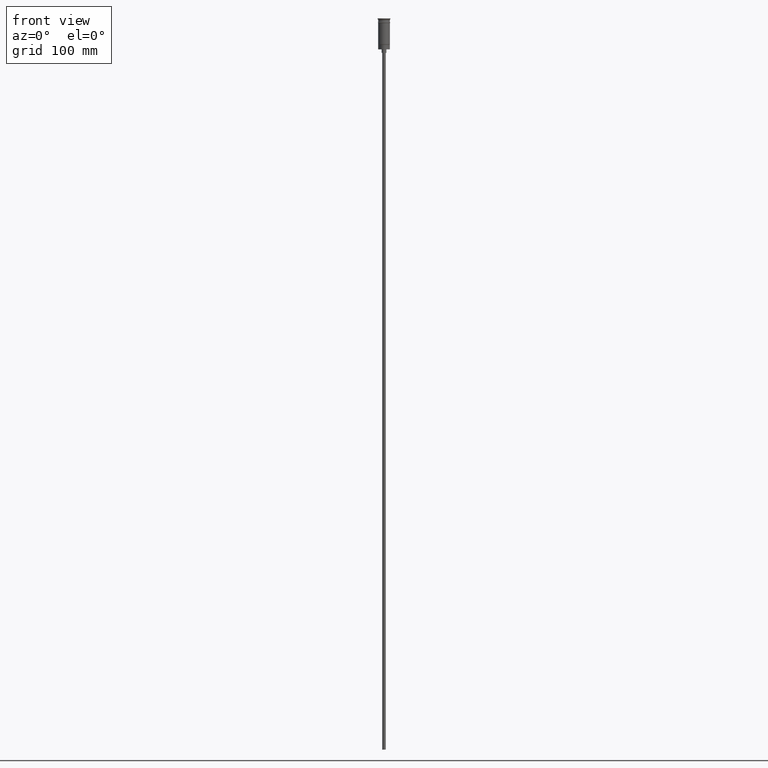
[diagram: clean part render]
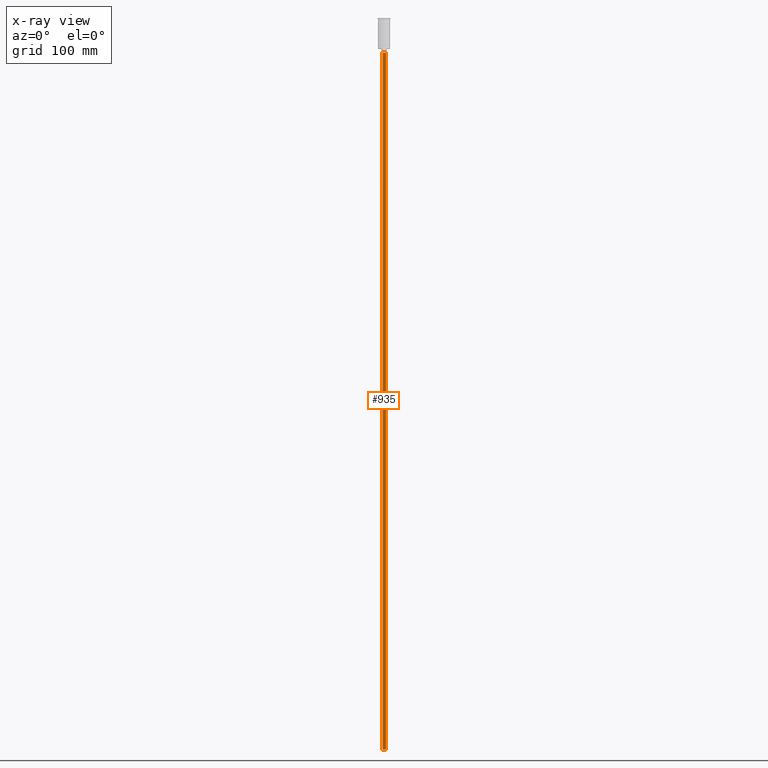
[diagram: x-ray — body ghosted, one internal face saturated and labeled with its STEP entity id]
A machine part, front view, then the same camera in x-ray: the body is ghosted and one INTERNAL B-rep face — a face not visible from any outside direction — is saturated and labeled: STEP entity #935.
In plain terms, the highlighted cylindrical surface (edge-blend (fillet) strip) has radius 1.5 mm, axis along (-0, -0, 1).
Its self-contained STEP definition (entity closure, byte-faithful):
#20 = CARTESIAN_POINT ( 'NONE',  ( 1.500000000000000222, 0.000000000000000000, -626.5000000000000000 ) ) ;
#50 = LINE ( 'NONE', #1543, #206 ) ;
#74 = FACE_OUTER_BOUND ( 'NONE', #1339, .T. ) ;
#206 = VECTOR ( 'NONE', #918, 1000.000000000000000 ) ;
#317 = CARTESIAN_POINT ( 'NONE',  ( -1.500000000000000222, 1.836970198721030181E-16, -29.50000000000000000 ) ) ;
#348 = DIRECTION ( 'NONE',  ( 0.000000000000000000, 0.000000000000000000, -1.000000000000000000 ) ) ;
#451 = ORIENTED_EDGE ( 'NONE', *, *, #1455, .T. ) ;
#522 = CARTESIAN_POINT ( 'NONE',  ( 1.500000000000000222, 0.000000000000000000, -29.50000000000000000 ) ) ;
#563 = AXIS2_PLACEMENT_3D ( 'NONE', #1538, #800, #1390 ) ;
#570 = VERTEX_POINT ( 'NONE', #20 ) ;
#597 = ORIENTED_EDGE ( 'NONE', *, *, #663, .T. ) ;
#617 = AXIS2_PLACEMENT_3D ( 'NONE', #1272, #1388, #1556 ) ;
#618 = CARTESIAN_POINT ( 'NONE',  ( -1.500000000000000222, 1.836970198721030181E-16, -626.5000000000000000 ) ) ;
#661 = CIRCLE ( 'NONE', #1225, 1.500000000000000222 ) ;
#663 = EDGE_CURVE ( 'NONE', #688, #1255, #661, .T. ) ;
#688 = VERTEX_POINT ( 'NONE', #317 ) ;
#800 = DIRECTION ( 'NONE',  ( -0.000000000000000000, -0.000000000000000000, 1.000000000000000000 ) ) ;
#825 = CARTESIAN_POINT ( 'NONE',  ( -1.500000000000000222, 1.836970198721030181E-16, -626.5000000000000000 ) ) ;
#829 = VECTOR ( 'NONE', #1094, 1000.000000000000000 ) ;
#855 = ORIENTED_EDGE ( 'NONE', *, *, #1361, .F. ) ;
#865 = LINE ( 'NONE', #825, #829 ) ;
#918 = DIRECTION ( 'NONE',  ( -0.000000000000000000, -0.000000000000000000, 1.000000000000000000 ) ) ;
#935 = ADVANCED_FACE ( 'NONE', ( #74 ), #1566, .T. ) ;
#1094 = DIRECTION ( 'NONE',  ( -0.000000000000000000, -0.000000000000000000, 1.000000000000000000 ) ) ;
#1128 = CIRCLE ( 'NONE', #617, 1.500000000000000222 ) ;
#1225 = AXIS2_PLACEMENT_3D ( 'NONE', #1452, #348, #1460 ) ;
#1255 = VERTEX_POINT ( 'NONE', #522 ) ;
#1272 = CARTESIAN_POINT ( 'NONE',  ( 0.000000000000000000, 0.000000000000000000, -626.5000000000000000 ) ) ;
#1322 = EDGE_CURVE ( 'NONE', #570, #1255, #50, .T. ) ;
#1339 = EDGE_LOOP ( 'NONE', ( #855, #451, #597, #1417 ) ) ;
#1361 = EDGE_CURVE ( 'NONE', #1544, #570, #1128, .T. ) ;
#1388 = DIRECTION ( 'NONE',  ( 0.000000000000000000, 0.000000000000000000, -1.000000000000000000 ) ) ;
#1390 = DIRECTION ( 'NONE',  ( 1.000000000000000000, 0.000000000000000000, 0.000000000000000000 ) ) ;
#1417 = ORIENTED_EDGE ( 'NONE', *, *, #1322, .F. ) ;
#1452 = CARTESIAN_POINT ( 'NONE',  ( 0.000000000000000000, 0.000000000000000000, -29.50000000000000000 ) ) ;
#1455 = EDGE_CURVE ( 'NONE', #1544, #688, #865, .T. ) ;
#1460 = DIRECTION ( 'NONE',  ( -1.000000000000000000, 0.000000000000000000, 0.000000000000000000 ) ) ;
#1538 = CARTESIAN_POINT ( 'NONE',  ( 0.000000000000000000, 0.000000000000000000, -626.5000000000000000 ) ) ;
#1543 = CARTESIAN_POINT ( 'NONE',  ( 1.500000000000000222, 0.000000000000000000, -626.5000000000000000 ) ) ;
#1544 = VERTEX_POINT ( 'NONE', #618 ) ;
#1556 = DIRECTION ( 'NONE',  ( -1.000000000000000000, 0.000000000000000000, 0.000000000000000000 ) ) ;
#1566 = CYLINDRICAL_SURFACE ( 'NONE', #563, 1.500000000000000222 ) ;